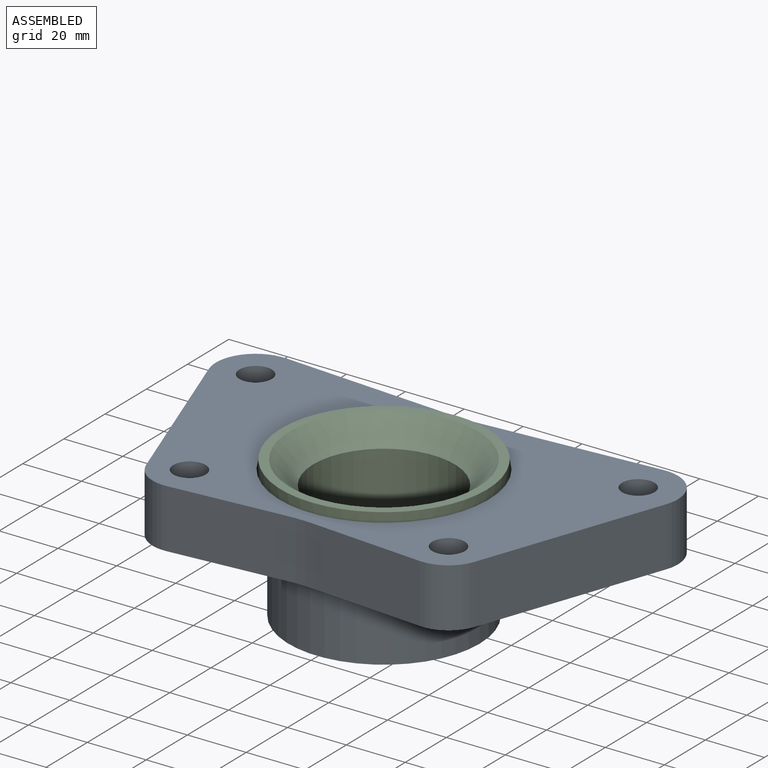
[diagram: assembled view]
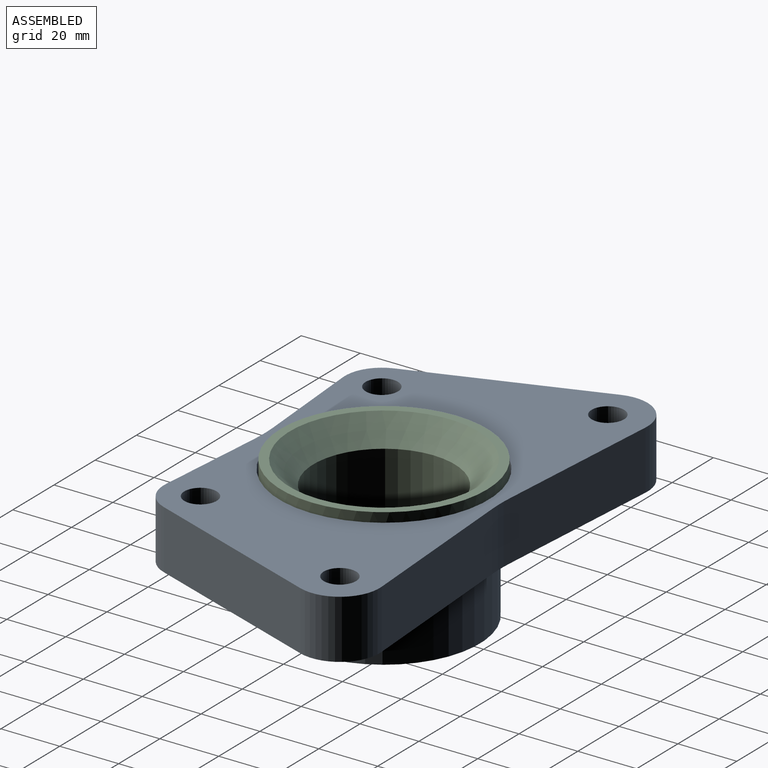
[diagram: assembled view, second angle]
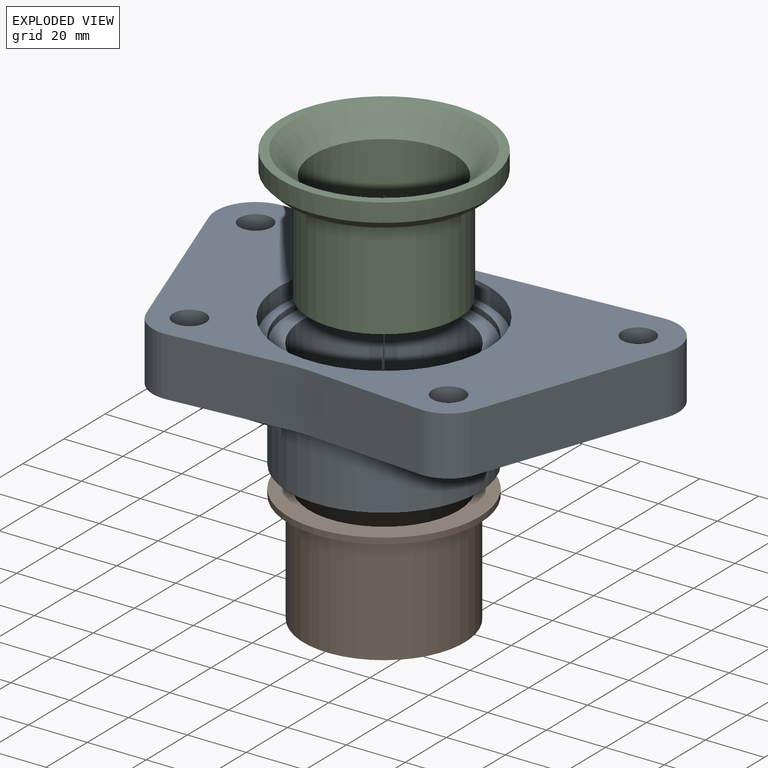
[diagram: exploded view]
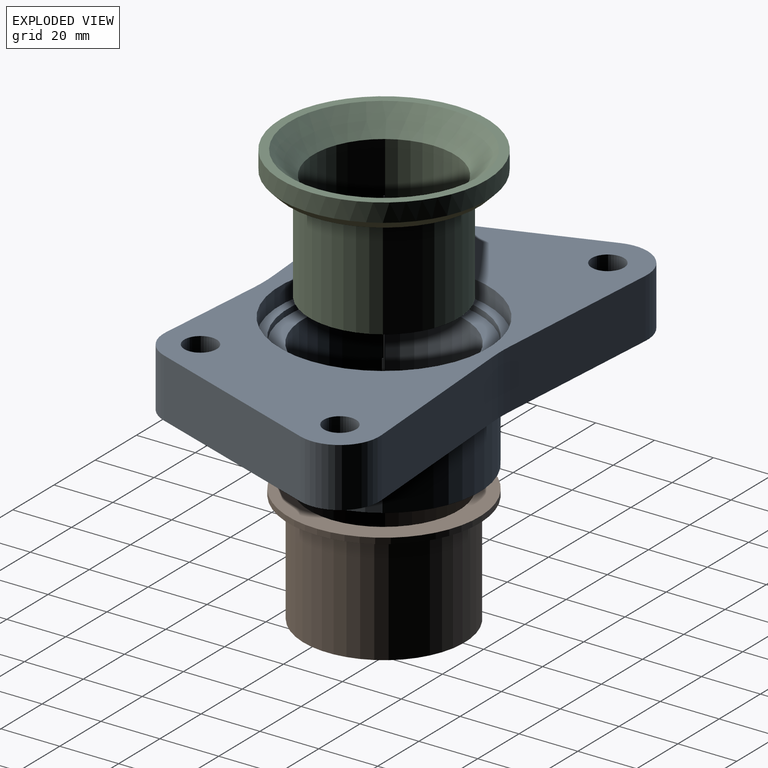
[diagram: exploded view, second angle]
ASSEMBLY  parts=3 mates=2
PART A: 72 faces, bbox 157x92.6x45 mm
  f0: cylinder r=27.5mm len=55mm, axis (0,0,-1), area 6393.1mm2, adj f7,f71
  f1: plane 157x88.07mm, normal (0,0,-1), area 3367.6mm2, adj f9,f12,f13,f14,f15,f16,f17,f18
  f2: cylinder r=5.5mm len=11mm, axis (0,0,1), area 172.8mm2, adj f6,f41
  f3: cylinder r=5.5mm len=11mm, axis (0,0,1), area 172.8mm2, adj f6,f36
  f4: cylinder r=5.5mm len=11mm, axis (0,0,1), area 172.8mm2, adj f6,f31
  f5: cylinder r=5.5mm len=11mm, axis (0,0,1), area 172.8mm2, adj f6,f26
  f6: plane 157x88.07mm, normal (0,0,1), area 7080.4mm2, adj f2,f3,f4,f5,f10,f12,f13,f14
  f7: plane 65x65mm, normal (0,0,-1), area 942.5mm2, adj f0,f8
  f8: cylinder r=32.5mm len=65mm, axis (0,0,-1), area 3879.9mm2, adj f7,f9
  f9: torus R=38.5mm, axis (0,0,-1), area 2053.7mm2, adj f1,f8
  f10: cylinder r=35.5mm len=71mm, axis (0,0,1), area 1338.3mm2, adj f6,f11
  f11: plane 71x71mm, normal (0,0,1), area 640.9mm2, adj f10,f70
  f12: cylinder r=12.5mm len=20mm, axis (0,0,1), area 327.6mm2, adj f1,f6,f13,f19
  f13: plane 61.74x21.94mm, normal (-0.94,-0.33,0), area 1310.5mm2, adj f1,f6,f12,f14
  f14: cylinder r=13.5mm len=20mm, axis (0,0,1), area 535.3mm2, adj f1,f6,f13,f20
  f15: cylinder r=12.5mm len=20mm, axis (0,0,1), area 327.6mm2, adj f1,f6,f17,f18
  f16: cylinder r=13.5mm len=20mm, axis (0,0,1), area 535.3mm2, adj f1,f6,f17,f21
  f17: plane 61.74x21.94mm, normal (0.94,-0.33,0), area 1310.5mm2, adj f1,f6,f15,f16
  f18: plane 38.12x20mm, normal (-0.08,-1,0), area 765mm2, adj f1,f6,f15,f68
  f19: plane 38.12x20mm, normal (0.08,-1,0), area 765mm2, adj f1,f6,f12,f68
  f20: plane 59.84x20mm, normal (0.07,1,0), area 1199.8mm2, adj f1,f6,f14,f69
  f21: plane 59.84x20mm, normal (-0.07,1,0), area 1199.8mm2, adj f1,f6,f16,f69
  f22: cylinder r=41.5mm len=15.07mm, axis (0,0,-1), area 269.9mm2, adj f1,f26,f52,f53
  f23: plane 31.72x15mm, normal (0.07,-1,0), area 477mm2, adj f1,f24,f26,f53
  f24: cylinder r=9.5mm len=18.15mm, axis (0,0,-1), area 396.9mm2, adj f1,f23,f25,f26
  f25: plane 23.17x15mm, normal (-0.41,0.91,0), area 381.7mm2, adj f1,f24,f26,f52
  f26: plane 46.54x29.12mm, normal (0,0,-1), area 834mm2, adj f5,f22,f23,f24,f25,f52,f53
  f27: cylinder r=41.5mm len=15.07mm, axis (0,0,-1), area 269.9mm2, adj f1,f31,f62,f63
  f28: plane 23.17x15mm, normal (0.41,0.91,0), area 381.7mm2, adj f1,f29,f31,f63
  f29: cylinder r=9.5mm len=18.15mm, axis (0,0,-1), area 396.9mm2, adj f1,f28,f30,f31
  f30: plane 31.72x15mm, normal (-0.07,-1,0), area 477mm2, adj f1,f29,f31,f62
  f31: plane 46.54x29.12mm, normal (0,0,-1), area 834mm2, adj f4,f27,f28,f29,f30,f62,f63
  f32: plane 15x6.22mm, normal (0.64,-0.77,0), area 121.1mm2, adj f1,f35,f36,f59
  f33: cylinder r=41.5mm len=15mm, axis (0,0,-1), area 178.5mm2, adj f1,f36,f58,f59
  f34: plane 15x12.04mm, normal (-0.08,1,0), area 181.3mm2, adj f1,f35,f36,f58
  f35: cylinder r=8.5mm len=15.05mm, axis (0,0,-1), area 322.9mm2, adj f1,f32,f34,f36
  f36: plane 25.83x21.34mm, normal (0,0,-1), area 295.1mm2, adj f3,f32,f33,f34,f35,f58,f59
  f37: plane 15x6.22mm, normal (-0.64,-0.77,0), area 121.1mm2, adj f1,f38,f41,f56
  f38: cylinder r=8.5mm len=15.05mm, axis (0,0,-1), area 322.9mm2, adj f1,f37,f39,f41
  f39: plane 15x12.04mm, normal (0.08,1,0), area 181.3mm2, adj f1,f38,f41,f57
  f40: cylinder r=41.5mm len=15mm, axis (0,0,-1), area 178.5mm2, adj f1,f41,f56,f57
  f41: plane 25.83x21.34mm, normal (0,0,-1), area 295.1mm2, adj f2,f37,f38,f39,f40,f56,f57
  f42: plane 15x7.96mm, normal (0.64,0.77,0), area 154.8mm2, adj f1,f46,f54,f65
  f43: cylinder r=41.5mm len=15mm, axis (0,0,-1), area 53.8mm2, adj f1,f46,f64,f65
  f44: plane 15x13.08mm, normal (0.41,-0.91,0), area 215.6mm2, adj f1,f46,f55,f64
  f45: plane 15x14.75mm, normal (-0.94,0.33,0), area 234.8mm2, adj f1,f46,f54,f55
  f46: plane 24.75x22.84mm, normal (0,0,-1), area 378.6mm2, adj f42,f43,f44,f45,f54,f55,f64,f65
  f47: plane 15x13.08mm, normal (-0.41,-0.91,0), area 215.6mm2, adj f1,f51,f61,f66
  f48: cylinder r=41.5mm len=15mm, axis (0,0,-1), area 53.8mm2, adj f1,f51,f66,f67
  f49: plane 15x7.96mm, normal (-0.64,0.77,0), area 154.8mm2, adj f1,f51,f60,f67
  f50: plane 15x14.75mm, normal (0.94,0.33,0), area 234.8mm2, adj f1,f51,f60,f61
  f51: plane 24.75x22.84mm, normal (0,0,-1), area 378.6mm2, adj f47,f48,f49,f50,f60,f61,f66,f67
  f52: cylinder r=5mm len=15mm, axis (0,0,-1), area 123.6mm2, adj f1,f22,f25,f26
  f53: cylinder r=5mm len=15mm, axis (0,0,-1), area 171.3mm2, adj f1,f22,f23,f26
  f54: cylinder r=5mm len=15mm, axis (0,0,1), area 144mm2, adj f1,f42,f45,f46
  f55: cylinder r=5mm len=15mm, axis (0,0,-1), area 175.4mm2, adj f1,f44,f45,f46
  f56: cylinder r=5mm len=15mm, axis (0,0,-1), area 129.5mm2, adj f1,f37,f40,f41
  f57: cylinder r=5mm len=15mm, axis (0,0,-1), area 173.3mm2, adj f1,f39,f40,f41
  f58: cylinder r=5mm len=15mm, axis (0,0,-1), area 173.3mm2, adj f1,f33,f34,f36
  f59: cylinder r=5mm len=15mm, axis (0,0,-1), area 129.5mm2, adj f1,f32,f33,f36
  f60: cylinder r=5mm len=15mm, axis (0,0,1), area 144mm2, adj f1,f49,f50,f51
  f61: cylinder r=5mm len=15mm, axis (0,0,-1), area 175.4mm2, adj f1,f47,f50,f51
  f62: cylinder r=5mm len=15mm, axis (0,0,-1), area 171.3mm2, adj f1,f27,f30,f31
  f63: cylinder r=5mm len=15mm, axis (0,0,-1), area 123.6mm2, adj f1,f27,f28,f31
  f64: cylinder r=4mm len=15mm, axis (0,0,-1), area 66.1mm2, adj f1,f43,f44,f46
  f65: cylinder r=4mm len=15mm, axis (0,0,-1), area 60.6mm2, adj f1,f42,f43,f46
  f66: cylinder r=4mm len=15mm, axis (0,0,-1), area 66.1mm2, adj f1,f47,f48,f51
  f67: cylinder r=4mm len=15mm, axis (0,0,-1), area 60.6mm2, adj f1,f48,f49,f51
  f68: cylinder r=60mm len=20mm, axis (0,0,1), area 194.8mm2, adj f1,f6,f18,f19
  f69: cylinder r=60mm len=20mm, axis (0,0,1), area 168.5mm2, adj f1,f6,f20,f21
  f70: cylinder r=32.5mm len=65mm, axis (0,0,1), area 408.4mm2, adj f11,f71
  f71: plane 65x65mm, normal (0,0,1), area 942.5mm2, adj f0,f70
PART B: 6 faces, bbox 65x65x40 mm
  f0: cylinder r=32.5mm len=65mm, axis (0,0,-1), area 408.4mm2, adj f3,f5
  f1: plane 54.75x54.75mm, normal (0,0,-1), area 331.4mm2, adj f2,f4
  f2: cylinder r=25.38mm len=50.75mm, axis (0,0,-1), area 6377.4mm2, adj f1,f3
  f3: plane 65x65mm, normal (0,0,1), area 1295.5mm2, adj f0,f2
  f4: cylinder r=27.38mm len=54.75mm, axis (0,0,-1), area 6536.1mm2, adj f1,f5
  f5: plane 65x65mm, normal (0,0,-1), area 964mm2, adj f0,f4
PART C: 8 faces, bbox 70x70x45 mm
  f0: cylinder r=35mm len=70mm, axis (0,0,-1), area 1374.4mm2, adj f3,f6
  f1: plane 50.75x50.75mm, normal (0,0,-1), area 213.3mm2, adj f2,f4
  f2: cylinder r=24mm len=48mm, axis (0,0,-1), area 5579.5mm2, adj f1,f7
  f3: plane 70x70mm, normal (0,0,1), area 631.5mm2, adj f0,f7
  f4: cylinder r=25.38mm len=50.75mm, axis (0,0,-1), area 5739.7mm2, adj f1,f5
  f5: plane 64.5x64.5mm, normal (0,0,-1), area 1244.6mm2, adj f4,f6
  f6: cone r=35mm half-angle=45deg, axis (0,0,1), area 821.7mm2, adj f0,f5
  f7: cone r=24mm half-angle=45deg, axis (0,0,1), area 1990.4mm2, adj f2,f3
PLACE A t=(-35.65,-10.8,-49.39)mm
PLACE B t=(-35.65,-10.8,-50.39)mm
PLACE C t=(-35.65,-10.8,-46.39)mm
MATE fastened C.f0 <-> B.f0  axis (0,0,-1) through (-35.65,-10.8,-10.39)mm
MATE fastened B.f2 <-> A.f70  axis (0,0,-1) through (-35.65,-10.8,-10.39)mm
